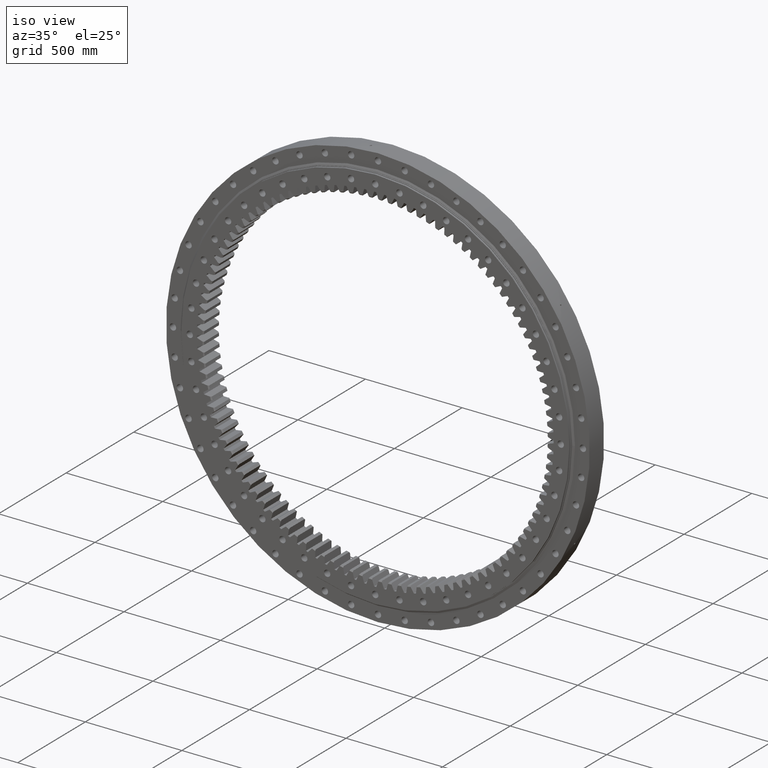
[diagram: clean part render]
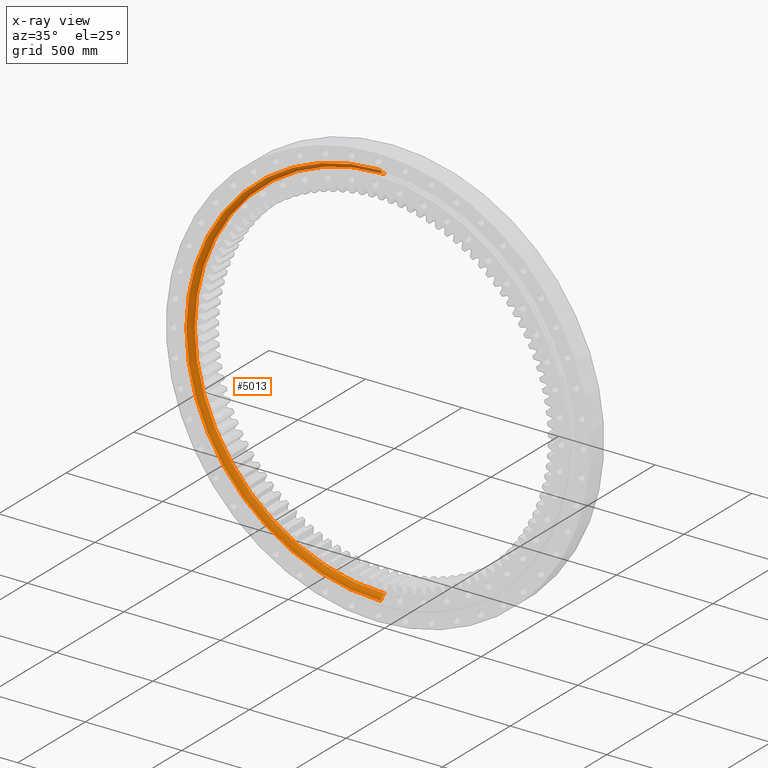
[diagram: x-ray — body ghosted, one internal face saturated and labeled with its STEP entity id]
A machine part, iso view, then the same camera in x-ray: the body is ghosted and one INTERNAL B-rep face — a face not visible from any outside direction — is saturated and labeled: STEP entity #5013.
In plain terms, the highlighted toroidal blend (fillet) surface has major radius 1011 mm and minor (blend) radius 26.9875 mm.
Its self-contained STEP definition (entity closure, byte-faithful):
#3334 = CARTESIAN_POINT ( 'NONE',  ( -2.125269931345438100E-015, -26.85222345891487800, 9.308035872566135400E-016 ) ) ;
#3531 = DIRECTION ( 'NONE',  ( 1.000000000000000000, -7.914688832368751900E-017, -5.551115123125783900E-017 ) ) ;
#3958 = DIRECTION ( 'NONE',  ( -7.914688832368751900E-017, -1.000000000000000000, 6.617654413443253200E-017 ) ) ;
#4594 = CARTESIAN_POINT ( 'NONE',  ( -1.751304425455466100E-013, 3.106059116482797100E-014, -984.0124999999999300 ) ) ;
#5013 = ADVANCED_FACE ( 'NONE', ( #21455 ), #19850, .F. ) ;
#5943 = DIRECTION ( 'NONE',  ( 5.551115123125783900E-017, 6.537678306668634400E-017, 1.000000000000000000 ) ) ;
#6543 = DIRECTION ( 'NONE',  ( 5.551115123125783900E-017, 6.617654413443253200E-017, 1.000000000000000000 ) ) ;
#7766 = CIRCLE ( 'NONE', #14154, 26.98749999999999700 ) ;
#7911 = EDGE_CURVE ( 'NONE', #9609, #12574, #11724, .T. ) ;
#9609 = VERTEX_POINT ( 'NONE', #29795 ) ;
#10069 = CARTESIAN_POINT ( 'NONE',  ( -1.799335652885991000E-013, -3.914891050428235900E-014, -1010.999999999999900 ) ) ;
#10443 = VERTEX_POINT ( 'NONE', #4594 ) ;
#11724 = CIRCLE ( 'NONE', #32278, 1008.301250000000000 ) ;
#12133 = CIRCLE ( 'NONE', #32572, 984.0124999999999300 ) ;
#12574 = VERTEX_POINT ( 'NONE', #32039 ) ;
#12637 = ORIENTED_EDGE ( 'NONE', *, *, #7911, .F. ) ;
#12653 = DIRECTION ( 'NONE',  ( 1.779758311459933900E-016, 0.0000000000000000000, 1.000000000000000000 ) ) ;
#13251 = CARTESIAN_POINT ( 'NONE',  ( 2.458349140190343800E-030, 3.106059116482783200E-014, -2.812395050717736200E-030 ) ) ;
#14154 = AXIS2_PLACEMENT_3D ( 'NONE', #18946, #3531, #21562 ) ;
#14751 = CIRCLE ( 'NONE', #27883, 26.98749999999994000 ) ;
#15175 = ORIENTED_EDGE ( 'NONE', *, *, #15564, .T. ) ;
#15564 = EDGE_CURVE ( 'NONE', #9609, #27619, #7766, .T. ) ;
#15838 = DIRECTION ( 'NONE',  ( 1.000000000000000000, -7.914688832368751900E-017, 0.0000000000000000000 ) ) ;
#17839 = EDGE_CURVE ( 'NONE', #27619, #10443, #12133, .T. ) ;
#18492 = EDGE_LOOP ( 'NONE', ( #15175, #23464, #24694, #12637 ) ) ;
#18946 = CARTESIAN_POINT ( 'NONE',  ( 5.612177389480166900E-014, 9.466006173554019900E-014, 1010.999999999999900 ) ) ;
#19374 = CARTESIAN_POINT ( 'NONE',  ( 2.196767443609846000E-030, 2.775557561562891400E-014, -2.593680543361188100E-030 ) ) ;
#19850 = TOROIDAL_SURFACE ( 'NONE', #26340, 1010.999999999999900, 26.98749999999999700 ) ;
#21369 = DIRECTION ( 'NONE',  ( -7.914688832368751900E-017, -1.000000000000000000, 6.617654413443253200E-017 ) ) ;
#21455 = FACE_OUTER_BOUND ( 'NONE', #18492, .T. ) ;
#21562 = DIRECTION ( 'NONE',  ( 7.914688832368759300E-017, 1.000000000000000000, 0.0000000000000000000 ) ) ;
#23464 = ORIENTED_EDGE ( 'NONE', *, *, #17839, .T. ) ;
#24694 = ORIENTED_EDGE ( 'NONE', *, *, #26881, .F. ) ;
#26340 = AXIS2_PLACEMENT_3D ( 'NONE', #19374, #3958, #6543 ) ;
#26881 = EDGE_CURVE ( 'NONE', #12574, #10443, #14751, .T. ) ;
#27619 = VERTEX_POINT ( 'NONE', #29349 ) ;
#27883 = AXIS2_PLACEMENT_3D ( 'NONE', #10069, #28078, #12653 ) ;
#28078 = DIRECTION ( 'NONE',  ( -1.000000000000000000, 7.914688832368753200E-017, 1.779758311459931700E-016 ) ) ;
#29349 = CARTESIAN_POINT ( 'NONE',  ( 5.462366670094808900E-014, 3.106059116482769900E-014, 984.0124999999999300 ) ) ;
#29795 = CARTESIAN_POINT ( 'NONE',  ( 5.384669324407087700E-014, -26.85222345891481400, 1008.301250000000000 ) ) ;
#31271 = DIRECTION ( 'NONE',  ( -7.914688832368751900E-017, -1.000000000000000000, 6.617654413443253200E-017 ) ) ;
#32039 = CARTESIAN_POINT ( 'NONE',  ( -1.825717284041743300E-013, -26.85222345891494600, -1008.301250000000000 ) ) ;
#32278 = AXIS2_PLACEMENT_3D ( 'NONE', #3334, #21369, #5943 ) ;
#32572 = AXIS2_PLACEMENT_3D ( 'NONE', #13251, #31271, #15838 ) ;